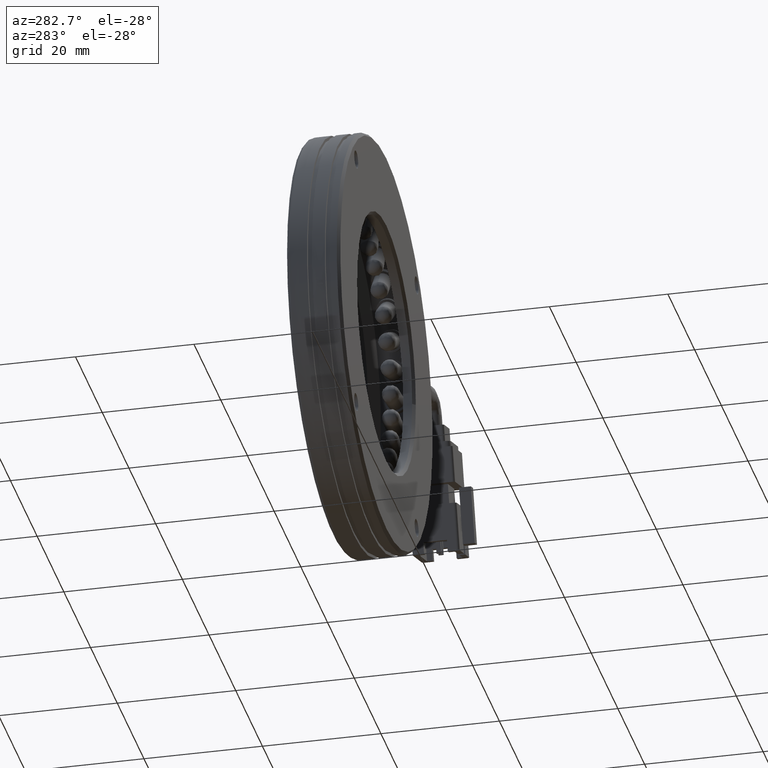
[diagram: clean part render]
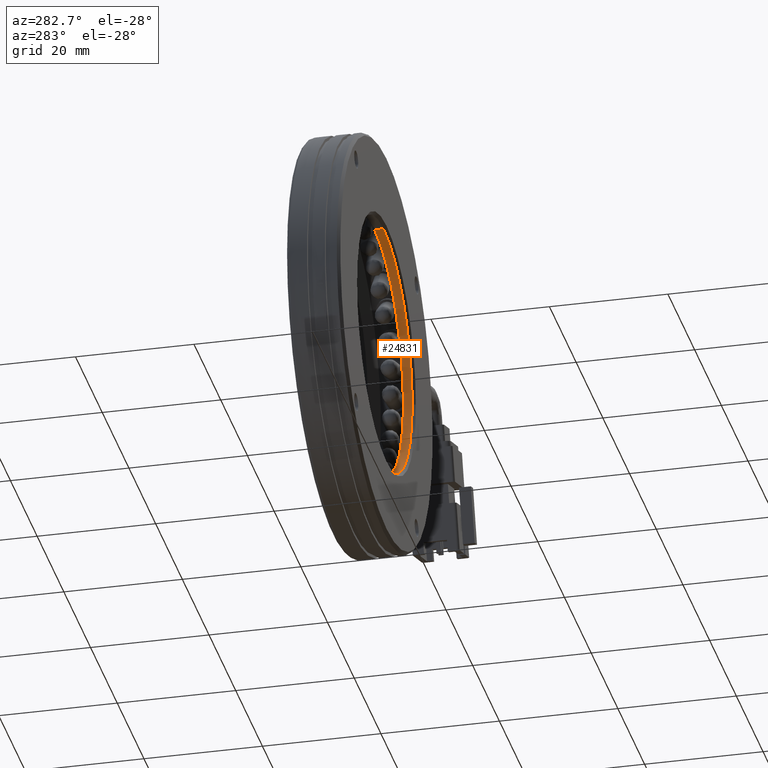
[diagram: same view with one face highlighted and labeled with its STEP entity id]
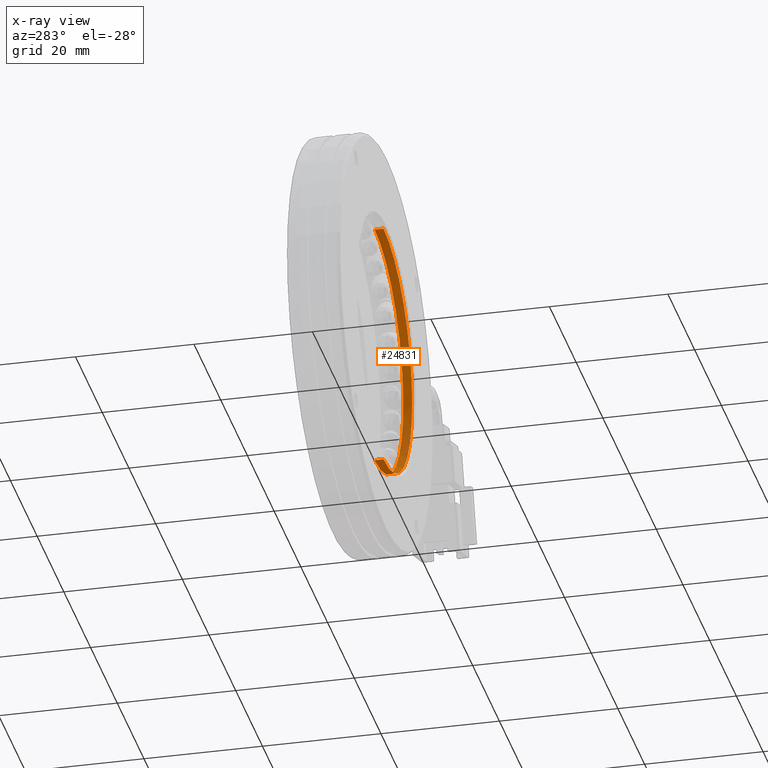
[diagram: x-ray of the same camera — body ghosted, the highlighted face saturated]
A machine part, auxiliary view. The second image highlights one B-rep face of the part: STEP entity #24831.
The next image is the same camera in x-ray: the body ghosted, the highlighted face saturated — about 0% of this face is hidden behind the body in this view.
In plain terms, the highlighted cylindrical surface (partial cylindrical patch) has radius 21.5 mm, axis along (-0, -1, -0).
Its self-contained STEP definition (entity closure, byte-faithful):
#933 = VECTOR ( 'NONE', #14636, 1000.000000000000000 ) ;
#1846 = CARTESIAN_POINT ( 'NONE',  ( -5.709292144904565300, 4.760202915404257800, -21.50000000000000000 ) ) ;
#1891 = EDGE_CURVE ( 'NONE', #20083, #4703, #34036, .T. ) ;
#2899 = AXIS2_PLACEMENT_3D ( 'NONE', #21989, #6497, #18972 ) ;
#3336 = DIRECTION ( 'NONE',  ( -0.0000000000000000000, -1.000000000000000000, -0.0000000000000000000 ) ) ;
#4020 = ORIENTED_EDGE ( 'NONE', *, *, #1891, .F. ) ;
#4703 = VERTEX_POINT ( 'NONE', #33708 ) ;
#4720 = CARTESIAN_POINT ( 'NONE',  ( -5.709292144904562600, 6.260202915404280000, 21.50000000000000000 ) ) ;
#4879 = CARTESIAN_POINT ( 'NONE',  ( -5.709292144904565300, 4.760202915404257800, 0.0000000000000000000 ) ) ;
#6497 = DIRECTION ( 'NONE',  ( -0.0000000000000000000, -1.000000000000000000, -0.0000000000000000000 ) ) ;
#6640 = CIRCLE ( 'NONE', #40211, 21.50000000000000000 ) ;
#8018 = DIRECTION ( 'NONE',  ( 0.0000000000000000000, 0.0000000000000000000, -1.000000000000000000 ) ) ;
#10632 = ORIENTED_EDGE ( 'NONE', *, *, #37830, .T. ) ;
#12417 = CARTESIAN_POINT ( 'NONE',  ( -5.709292144904565300, 4.760202915404257800, 0.0000000000000000000 ) ) ;
#14056 = AXIS2_PLACEMENT_3D ( 'NONE', #21935, #3336, #25104 ) ;
#14636 = DIRECTION ( 'NONE',  ( -0.0000000000000000000, -1.000000000000000000, -0.0000000000000000000 ) ) ;
#14919 = VERTEX_POINT ( 'NONE', #32043 ) ;
#15527 = DIRECTION ( 'NONE',  ( 0.0000000000000000000, 0.0000000000000000000, -1.000000000000000000 ) ) ;
#15698 = EDGE_LOOP ( 'NONE', ( #4020, #40184, #10632, #25645, #36477 ) ) ;
#15962 = LINE ( 'NONE', #36590, #24271 ) ;
#18972 = DIRECTION ( 'NONE',  ( 0.0000000000000000000, 0.0000000000000000000, -1.000000000000000000 ) ) ;
#20083 = VERTEX_POINT ( 'NONE', #4720 ) ;
#21212 = DIRECTION ( 'NONE',  ( -0.0000000000000000000, -1.000000000000000000, -0.0000000000000000000 ) ) ;
#21935 = CARTESIAN_POINT ( 'NONE',  ( -5.709292144904565300, 6.260202915404280000, 0.0000000000000000000 ) ) ;
#21989 = CARTESIAN_POINT ( 'NONE',  ( -5.709292144904565300, -49.82318178258231000, 0.0000000000000000000 ) ) ;
#22110 = CARTESIAN_POINT ( 'NONE',  ( -5.709292144904562600, -49.82318178258231000, 21.50000000000000000 ) ) ;
#22338 = AXIS2_PLACEMENT_3D ( 'NONE', #12417, #34211, #15527 ) ;
#23677 = CIRCLE ( 'NONE', #14056, 21.50000000000000000 ) ;
#23713 = EDGE_CURVE ( 'NONE', #14919, #20083, #23677, .T. ) ;
#24271 = VECTOR ( 'NONE', #21212, 1000.000000000000000 ) ;
#24831 = ADVANCED_FACE ( 'NONE', ( #28876 ), #33257, .F. ) ;
#25104 = DIRECTION ( 'NONE',  ( 0.0000000000000000000, 0.0000000000000000000, -1.000000000000000000 ) ) ;
#25645 = ORIENTED_EDGE ( 'NONE', *, *, #40076, .T. ) ;
#26678 = DIRECTION ( 'NONE',  ( 0.0000000000000000000, -1.000000000000000000, 0.0000000000000000000 ) ) ;
#27315 = CARTESIAN_POINT ( 'NONE',  ( 15.79070785509543600, 4.760202915404257800, 0.0000000000000000000 ) ) ;
#28104 = VERTEX_POINT ( 'NONE', #27315 ) ;
#28515 = EDGE_CURVE ( 'NONE', #28104, #4703, #32170, .T. ) ;
#28876 = FACE_OUTER_BOUND ( 'NONE', #15698, .T. ) ;
#32043 = CARTESIAN_POINT ( 'NONE',  ( -5.709292144904565300, 6.260202915404280000, -21.50000000000000000 ) ) ;
#32170 = CIRCLE ( 'NONE', #22338, 21.50000000000000000 ) ;
#33257 = CYLINDRICAL_SURFACE ( 'NONE', #2899, 21.50000000000000000 ) ;
#33708 = CARTESIAN_POINT ( 'NONE',  ( -5.709292144904562600, 4.760202915404257800, 21.50000000000000000 ) ) ;
#34036 = LINE ( 'NONE', #22110, #933 ) ;
#34211 = DIRECTION ( 'NONE',  ( 0.0000000000000000000, -1.000000000000000000, 0.0000000000000000000 ) ) ;
#34507 = VERTEX_POINT ( 'NONE', #1846 ) ;
#36477 = ORIENTED_EDGE ( 'NONE', *, *, #28515, .T. ) ;
#36590 = CARTESIAN_POINT ( 'NONE',  ( -5.709292144904565300, -49.82318178258231000, -21.50000000000000000 ) ) ;
#37830 = EDGE_CURVE ( 'NONE', #14919, #34507, #15962, .T. ) ;
#40076 = EDGE_CURVE ( 'NONE', #34507, #28104, #6640, .T. ) ;
#40184 = ORIENTED_EDGE ( 'NONE', *, *, #23713, .F. ) ;
#40211 = AXIS2_PLACEMENT_3D ( 'NONE', #4879, #26678, #8018 ) ;